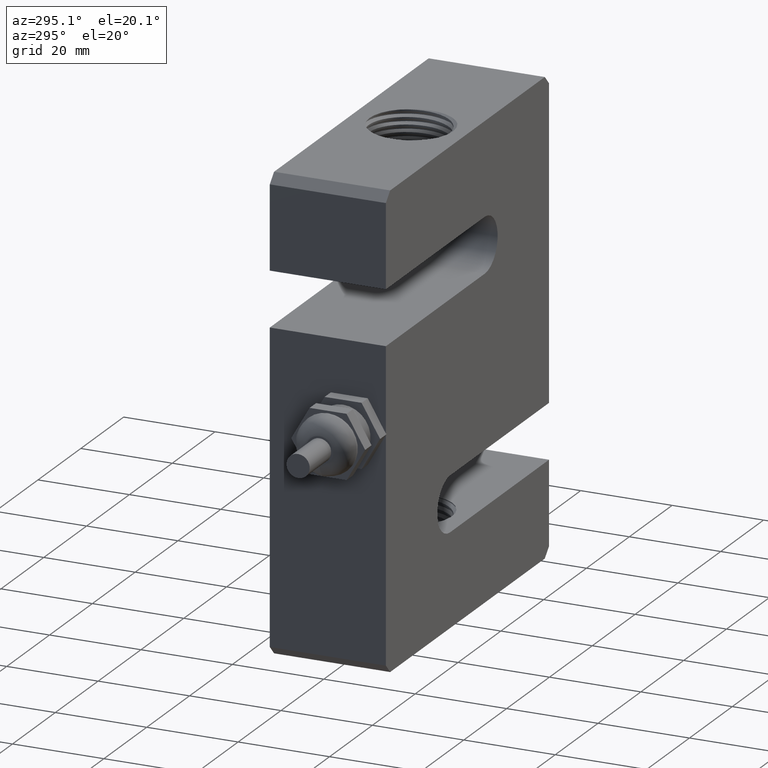
[diagram: clean part render]
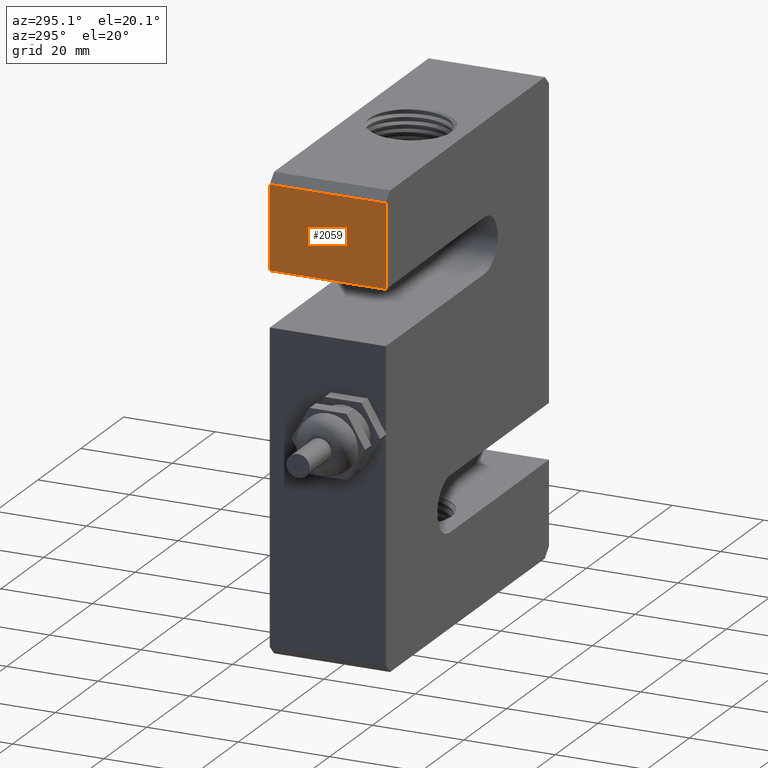
[diagram: same view with one face highlighted and labeled with its STEP entity id]
A machine part, auxiliary view. The second image highlights one B-rep face of the part: STEP entity #2059.
In plain terms, the highlighted planar face has unit normal (-1, 0, 0).
Its self-contained STEP definition (entity closure, byte-faithful):
#192=PLANE('',#2226);
#297=FACE_OUTER_BOUND('',#421,.T.);
#421=EDGE_LOOP('',(#1663,#1664,#1665,#1666));
#561=LINE('',#5915,#707);
#567=LINE('',#6022,#713);
#569=LINE('',#6132,#715);
#570=LINE('',#6133,#716);
#707=VECTOR('',#2608,10.);
#713=VECTOR('',#2618,10.);
#715=VECTOR('',#2622,10.);
#716=VECTOR('',#2623,10.);
#948=VERTEX_POINT('',#5885);
#962=VERTEX_POINT('',#5913);
#967=VERTEX_POINT('',#6020);
#968=VERTEX_POINT('',#6131);
#1232=EDGE_CURVE('',#962,#948,#561,.T.);
#1239=EDGE_CURVE('',#967,#962,#567,.T.);
#1242=EDGE_CURVE('',#948,#968,#569,.T.);
#1243=EDGE_CURVE('',#968,#967,#570,.T.);
#1663=ORIENTED_EDGE('',*,*,#1242,.F.);
#1664=ORIENTED_EDGE('',*,*,#1232,.F.);
#1665=ORIENTED_EDGE('',*,*,#1239,.F.);
#1666=ORIENTED_EDGE('',*,*,#1243,.F.);
#2059=ADVANCED_FACE('',(#297),#192,.T.);
#2226=AXIS2_PLACEMENT_3D('',#6130,#2620,#2621);
#2608=DIRECTION('',(8.74191357972564E-17,0.,1.));
#2618=DIRECTION('',(0.,1.,0.));
#2620=DIRECTION('center_axis',(-1.,0.,8.74191357972564E-17));
#2621=DIRECTION('ref_axis',(8.74191357972564E-17,0.,1.));
#2622=DIRECTION('',(0.,-1.,0.));
#2623=DIRECTION('',(-8.74191357972564E-17,0.,-1.));
#5885=CARTESIAN_POINT('',(-38.1,12.7,48.8));
#5913=CARTESIAN_POINT('',(-38.1,12.7,30.6));
#5915=CARTESIAN_POINT('',(-38.1,12.7,50.8));
#6020=CARTESIAN_POINT('',(-38.1,-12.7,30.6));
#6022=CARTESIAN_POINT('',(-38.1,0.,30.6));
#6130=CARTESIAN_POINT('Origin',(-38.1,0.,30.6));
#6131=CARTESIAN_POINT('',(-38.1,-12.7,48.8));
#6132=CARTESIAN_POINT('',(-38.1,0.,48.8));
#6133=CARTESIAN_POINT('',(-38.1,-12.7,50.8));